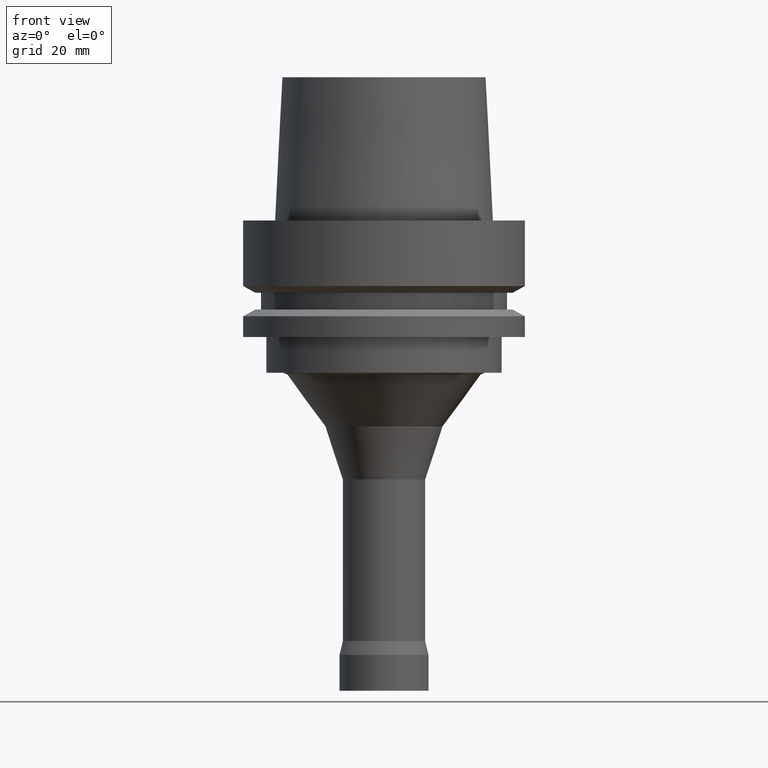
[diagram: clean part render]
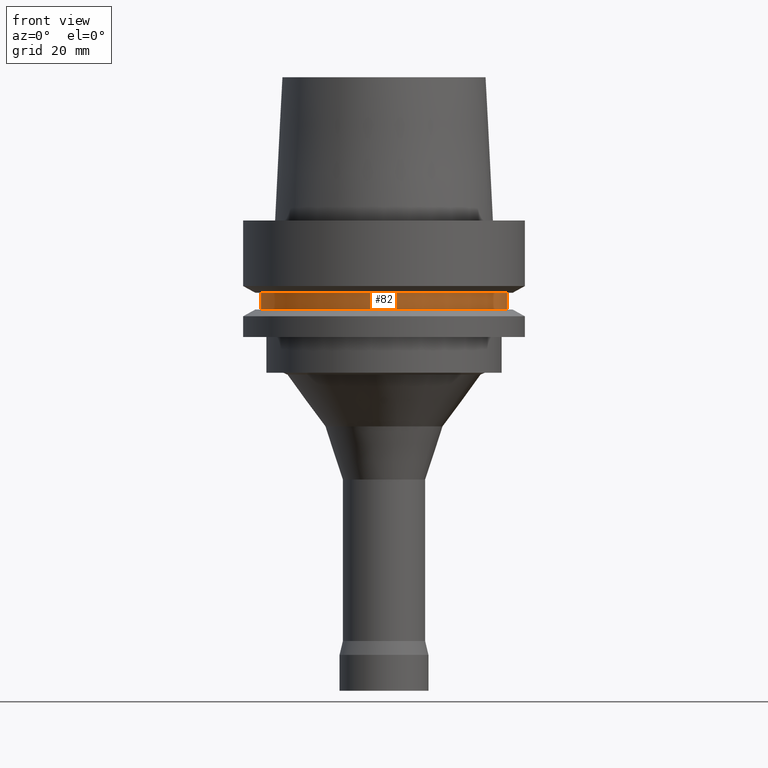
[diagram: same view with one face highlighted and labeled with its STEP entity id]
A machine part, front view. The second image highlights one B-rep face of the part: STEP entity #82.
In plain terms, the highlighted cylindrical surface (bore or boss wall) has radius 27.5 mm, axis along (-0, -0, 1).
Its self-contained STEP definition (entity closure, byte-faithful):
#82=ADVANCED_FACE('',(#115,#116),#117,.T.);
#115=FACE_BOUND('',#173,.T.);
#116=FACE_BOUND('',#174,.T.);
#117=CYLINDRICAL_SURFACE('',#175,27.5);
#173=EDGE_LOOP('',(#245));
#174=EDGE_LOOP('',(#246));
#175=AXIS2_PLACEMENT_3D('',#247,#248,#249);
#245=ORIENTED_EDGE('',*,*,#317,.F.);
#246=ORIENTED_EDGE('',*,*,#316,.T.);
#247=CARTESIAN_POINT('',(1.10218211923262E-015,2.20436423846524E-015,-18.0));
#248=DIRECTION('',(-6.12323399573677E-017,-1.22464679914735E-016,1.0));
#249=DIRECTION('',(-1.23259516440783E-032,1.0,1.22464679914735E-016));
#316=EDGE_CURVE('',#341,#341,#342,.T.);
#317=EDGE_CURVE('',#343,#343,#344,.T.);
#341=VERTEX_POINT('',#379);
#342=CIRCLE('',#380,27.5);
#343=VERTEX_POINT('',#381);
#344=CIRCLE('',#382,27.5);
#379=CARTESIAN_POINT('',(9.87371481812553E-016,27.5,-16.125));
#380=AXIS2_PLACEMENT_3D('',#423,#424,#425);
#381=CARTESIAN_POINT('',(1.21699275665268E-015,27.5,-19.875));
#382=AXIS2_PLACEMENT_3D('',#426,#427,#428);
#423=CARTESIAN_POINT('',(9.87371481812554E-016,1.97474296362511E-015,-16.125));
#424=DIRECTION('',(6.12323399573677E-017,1.22464679914735E-016,-1.0));
#425=DIRECTION('',(-1.23259516440783E-032,1.0,1.22464679914735E-016));
#426=CARTESIAN_POINT('',(1.21699275665268E-015,2.43398551330536E-015,-19.875));
#427=DIRECTION('',(6.12323399573677E-017,1.22464679914735E-016,-1.0));
#428=DIRECTION('',(-1.23259516440783E-032,1.0,1.22464679914735E-016));